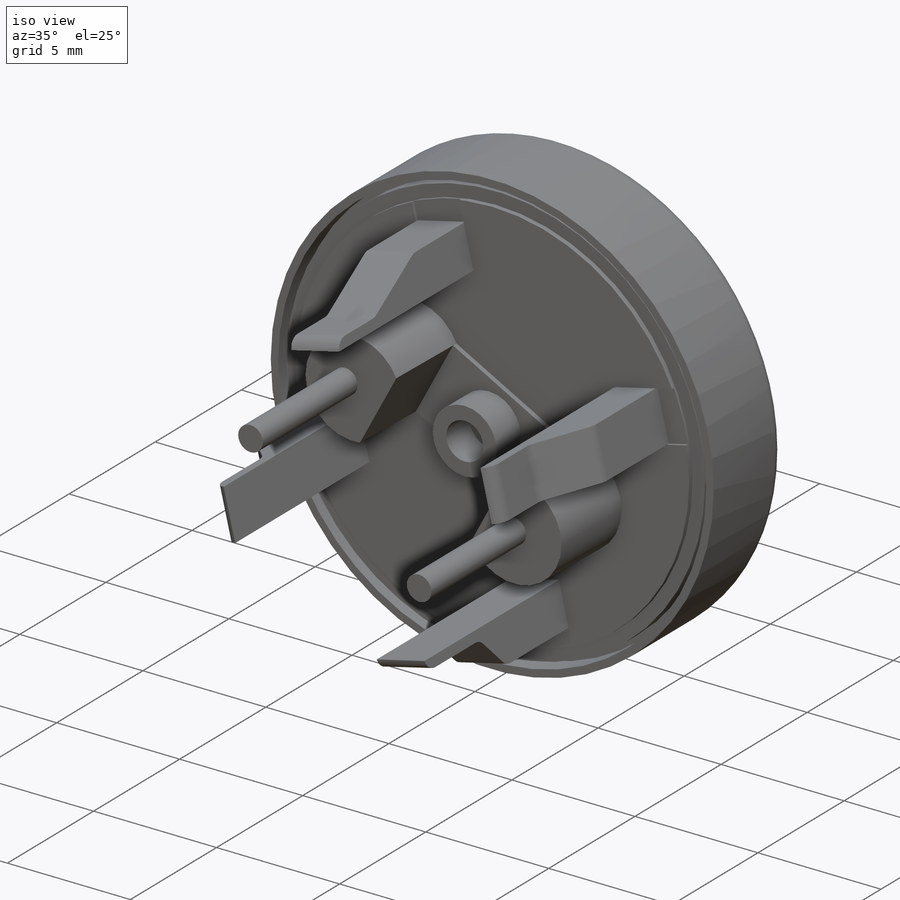
[diagram: iso view]
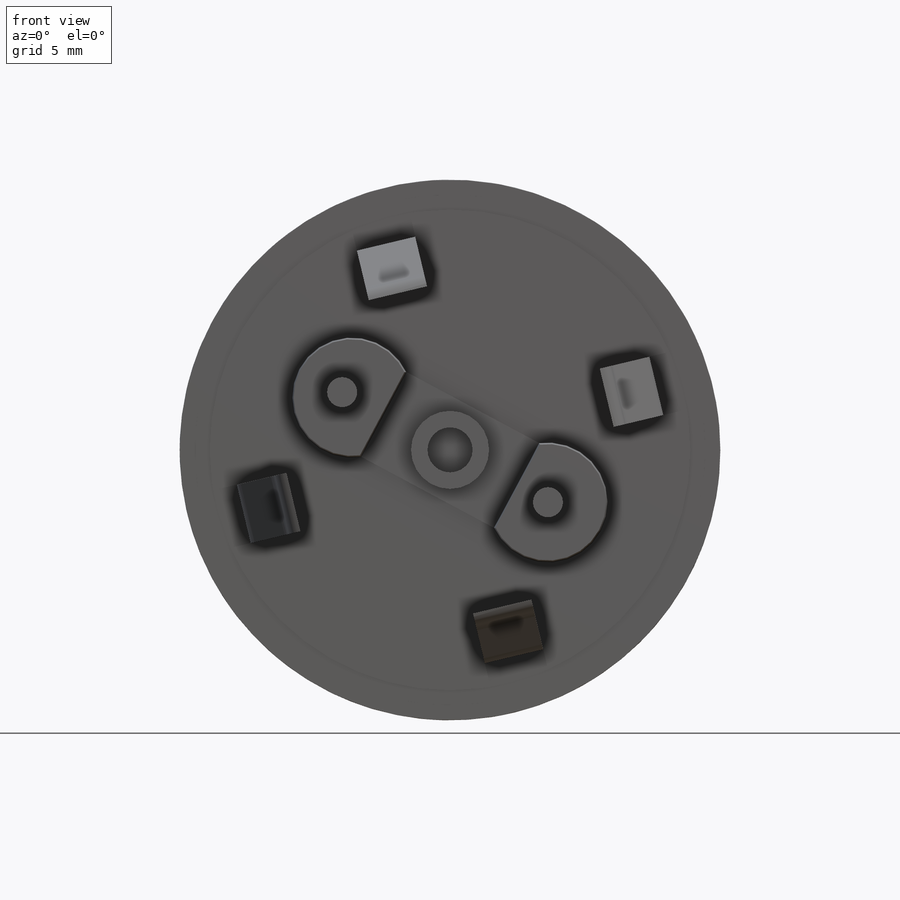
[diagram: front view]
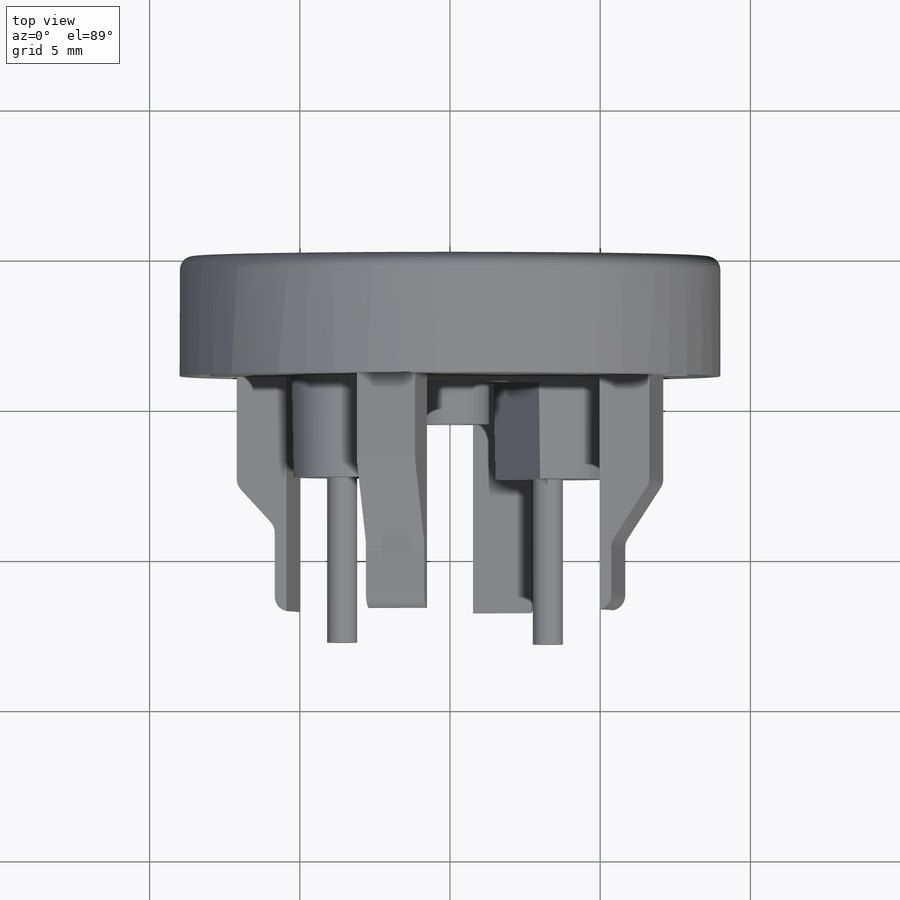
[diagram: top view]
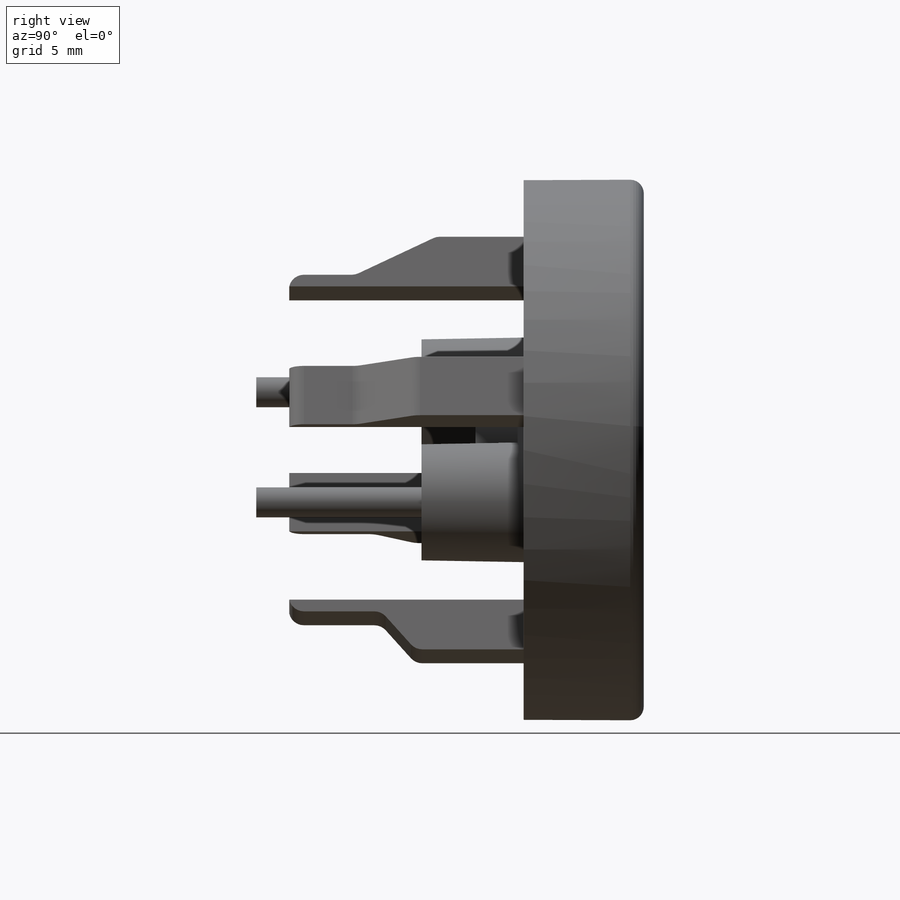
[diagram: right view]
SOLIDWORKS PART (.sldprt)
format: sldprt  version: not decoded by parser v0  size: 589,312 bytes
history: native  units: mm
features: sketch x16, cut_extrude x9, extrude x7, plane x3, fillet x2, material x1, dome x1 (+8 scaffold rows collapsed)
feature tree (47):
  scaffold x8  (default folders/planes/origin — collapsed)
  material  "Material <not specified>"
  plane  "Plan de face"
  plane  "Plan de dessus"
  plane  "Plan de droite"
  sketch  "Esquisse1"  dims[D1=~29.894451mm]
  extrude  "Boss.-Extru.1"  Depth=4mm
  sketch  "Esquisse2"  dims[D1=~6.932671mm]
  cut_extrude  "Enlèv. mat.-Extru.1"  Depth=0.1mm
  dome  "Dôme1"
  fillet  "Congé2"  Radius=0.45mm
  sketch  "Esquisse5"  dims[D1=8.6mm]
  cut_extrude  "Enlèv. mat.-Extru.4"  Depth=0.8mm
  sketch  "Esquisse6"  dims[D1=~7.58363mm]
  cut_extrude  "Enlèv. mat.-Extru.5"  Depth=0.2mm
  sketch  "Esquisse7"  dims[D1=~0.919132mm]
  extrude  "Boss.-Extru.2"  Depth=1.6mm
  sketch  "Esquisse8"  dims[D1=~0.679755mm]
  cut_extrude  "Enlèv. mat.-Extru.6"  Depth=2mm
  sketch  "Esquisse9"  dims[D2=2.0mm D1=4.0]
  cut_extrude  "Enlèv. mat.-Extru.7"  Depth=0.1mm
  sketch  "Esquisse10"  dims[c1.D1=~1.997141mm c2.D1=4.0]
  extrude  "Boss.-Extru.4"  Depth=7.8mm
  sketch  "Esquisse11"  dims[D1=0.4mm D2=3.6mm]
  cut_extrude  "Enlèv. mat.-Extru.9"  [1 undecoded]
  sketch  "Esquisse15"  dims[D1=0.4mm D2=3.6mm]
  cut_extrude  "Enlèv. mat.-Extru.10"  Depth=7.8mm
  sketch  "Esquisse16"  dims[D1=0.4mm D2=3.6mm]
  cut_extrude  "Enlèv. mat.-Extru.11"  Depth=7.8mm
  sketch  "Esquisse17"  dims[D1=3.6mm D2=0.4mm]
  cut_extrude  "Enlèv. mat.-Extru.12"  Depth=7.8mm
  fillet  "Congé4"  Radius=0.5mm
  sketch  "Esquisse19"  dims[c1.D1=~1.88661mm c1.D2=17.0mm c1.D4=8.0mm c2.D1=3.5mm c2.D2=~3.151937mm c2.D3=5.0mm c2.D4=5.5mm c3.D1=1.6mm c3.D2=1.6mm c3.D3=2.5mm c3.D4=2.5mm]
  extrude  "Boss.-Extru.5"  Depth=0.2mm
  extrude  "Boss.-Extru.6"  [1 undecoded]
  sketch  "Esquisse19<2>"  dims[D1=0.2mm]
  sketch  "Esquisse21"
  extrude  "Boss.-Extru.7"  Depth=3.4mm
  sketch  "Esquisse22"  dims[c1.D1=~0.706992mm c2.D1=2.0]
  extrude  "Boss.-Extru.8"  Depth=5.5mm
decode coverage: 31 of 35 modeling features carry decoded parameters
note: ~ marks probable driven/reference dimensions
note: 2 parameter values undecoded
note: suppression state not decoded; provenance and decode notes live in map.json
